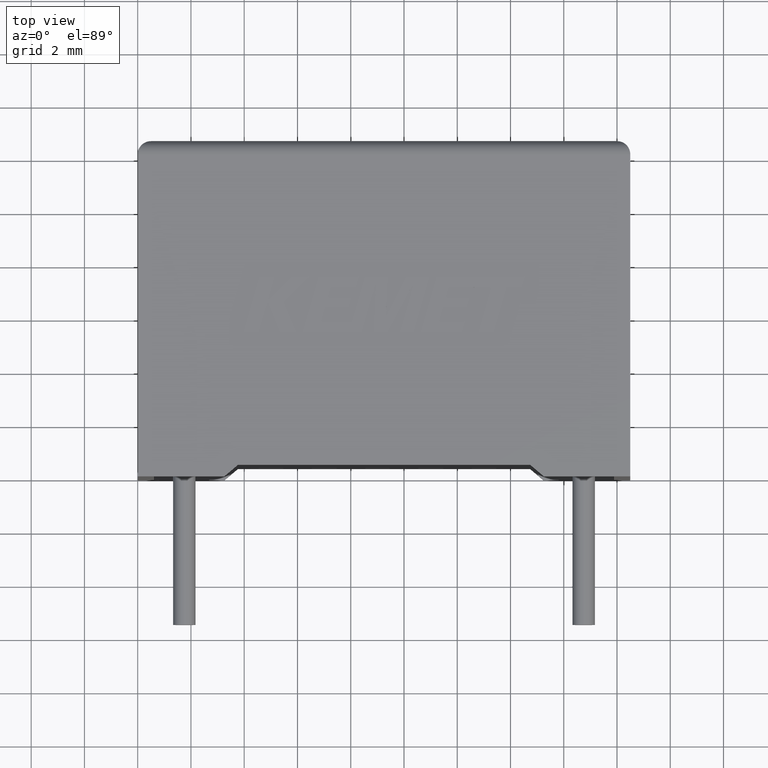
[diagram: clean part render]
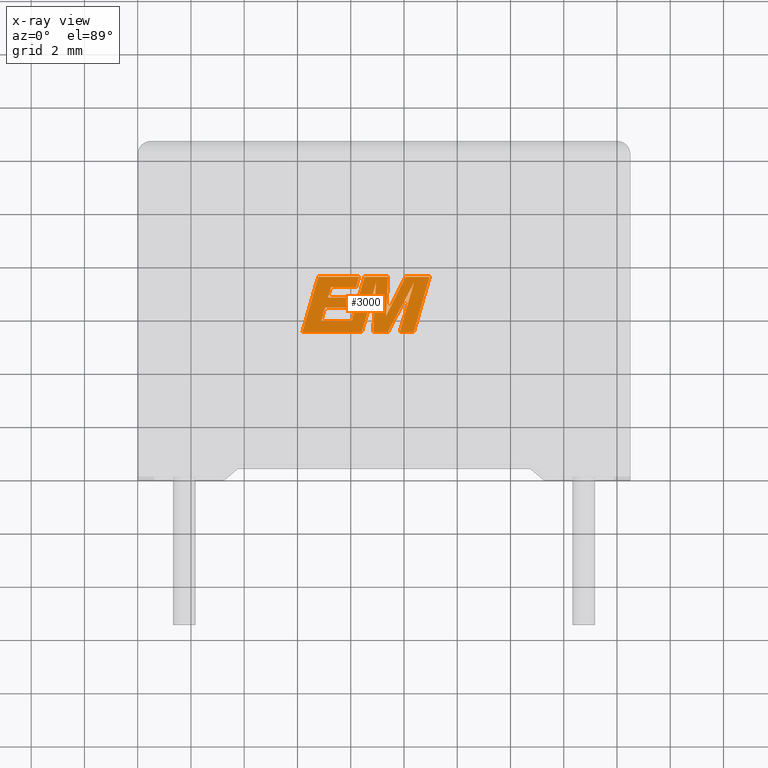
[diagram: x-ray — body ghosted, one internal face saturated and labeled with its STEP entity id]
A machine part, top view, then the same camera in x-ray: the body is ghosted and one INTERNAL B-rep face — a face not visible from any outside direction — is saturated and labeled: STEP entity #3000.
In plain terms, the highlighted planar face has unit normal (0, 0, -1).
Its self-contained STEP definition (entity closure, byte-faithful):
#3 = VECTOR ( 'NONE', #2600, 1000.000000000000000 ) ;
#30 = EDGE_CURVE ( 'NONE', #1759, #2270, #1248, .T. ) ;
#37 = LINE ( 'NONE', #913, #2716 ) ;
#45 = CARTESIAN_POINT ( 'NONE',  ( 8.844489607891244276, 5.421779999999935207, 9.199999999999999289 ) ) ;
#52 = ORIENTED_EDGE ( 'NONE', *, *, #2631, .F. ) ;
#64 = VECTOR ( 'NONE', #1901, 1000.000000000000227 ) ;
#78 = ORIENTED_EDGE ( 'NONE', *, *, #290, .F. ) ;
#82 = ORIENTED_EDGE ( 'NONE', *, *, #1582, .F. ) ;
#104 = CARTESIAN_POINT ( 'NONE',  ( 9.402119625592375129, 7.493935418444622520, 9.199999999999999289 ) ) ;
#105 = EDGE_CURVE ( 'NONE', #1160, #2338, #1770, .T. ) ;
#117 = ORIENTED_EDGE ( 'NONE', *, *, #1500, .F. ) ;
#142 = DIRECTION ( 'NONE',  ( 1.000000000000000000, 0.000000000000000000, 0.000000000000000000 ) ) ;
#153 = EDGE_CURVE ( 'NONE', #2251, #749, #685, .T. ) ;
#184 = LINE ( 'NONE', #890, #2669 ) ;
#186 = DIRECTION ( 'NONE',  ( 0.000000000000000000, 0.000000000000000000, -1.000000000000000000 ) ) ;
#215 = AXIS2_PLACEMENT_3D ( 'NONE', #1570, #186, #389 ) ;
#225 = CARTESIAN_POINT ( 'NONE',  ( 7.035415933177614711, 6.331020239467497923, 9.199999999999999289 ) ) ;
#249 = VERTEX_POINT ( 'NONE', #726 ) ;
#255 = LINE ( 'NONE', #2117, #1226 ) ;
#258 = VECTOR ( 'NONE', #2370, 1000.000000000000000 ) ;
#259 = ORIENTED_EDGE ( 'NONE', *, *, #1656, .F. ) ;
#278 = EDGE_CURVE ( 'NONE', #1948, #767, #2345, .T. ) ;
#289 = DIRECTION ( 'NONE',  ( -1.000000000000000000, 0.000000000000000000, 0.000000000000000000 ) ) ;
#290 = EDGE_CURVE ( 'NONE', #749, #1759, #2814, .T. ) ;
#298 = ORIENTED_EDGE ( 'NONE', *, *, #153, .F. ) ;
#306 = VECTOR ( 'NONE', #2073, 1000.000000000000227 ) ;
#323 = ORIENTED_EDGE ( 'NONE', *, *, #1738, .F. ) ;
#332 = ORIENTED_EDGE ( 'NONE', *, *, #733, .F. ) ;
#339 = VECTOR ( 'NONE', #798, 999.9999999999998863 ) ;
#389 = DIRECTION ( 'NONE',  ( -1.000000000000000000, 0.000000000000000000, 0.000000000000000000 ) ) ;
#393 = LINE ( 'NONE', #3058, #2637 ) ;
#399 = VECTOR ( 'NONE', #943, 1000.000000000000114 ) ;
#425 = VERTEX_POINT ( 'NONE', #617 ) ;
#436 = CARTESIAN_POINT ( 'NONE',  ( 8.418203306722089607, 5.421779999999935207, 9.199999999999999289 ) ) ;
#443 = VECTOR ( 'NONE', #1777, 1000.000000000000000 ) ;
#474 = DIRECTION ( 'NONE',  ( -1.000000000000000000, 0.000000000000000000, 0.000000000000000000 ) ) ;
#522 = DIRECTION ( 'NONE',  ( 0.2746459304916893385, 0.9615454294334481178, 0.000000000000000000 ) ) ;
#616 = ORIENTED_EDGE ( 'NONE', *, *, #1157, .F. ) ;
#617 = CARTESIAN_POINT ( 'NONE',  ( 8.844489607891244276, 5.421779999999935207, 9.199999999999999289 ) ) ;
#623 = CARTESIAN_POINT ( 'NONE',  ( 9.322430453529284122, 6.013560963577187835, 9.199999999999999289 ) ) ;
#625 = CARTESIAN_POINT ( 'NONE',  ( 9.322430453529284122, 6.013560963577187835, 9.199999999999999289 ) ) ;
#638 = FACE_OUTER_BOUND ( 'NONE', #1951, .T. ) ;
#641 = VERTEX_POINT ( 'NONE', #623 ) ;
#680 = ORIENTED_EDGE ( 'NONE', *, *, #2655, .F. ) ;
#685 = LINE ( 'NONE', #1095, #1717 ) ;
#686 = LINE ( 'NONE', #1084, #1273 ) ;
#697 = EDGE_CURVE ( 'NONE', #1247, #1160, #2952, .T. ) ;
#700 = CARTESIAN_POINT ( 'NONE',  ( 8.200952163646057613, 7.099511274375007730, 9.199999999999999289 ) ) ;
#725 = CARTESIAN_POINT ( 'NONE',  ( 8.947895129408749426, 7.266565502838268742, 9.199999999999999289 ) ) ;
#726 = CARTESIAN_POINT ( 'NONE',  ( 10.96548101203375403, 7.493935418444622520, 9.199999999999999289 ) ) ;
#733 = EDGE_CURVE ( 'NONE', #2842, #1523, #840, .T. ) ;
#734 = CARTESIAN_POINT ( 'NONE',  ( 10.36972105026527124, 5.421779999999935207, 9.199999999999999289 ) ) ;
#742 = VERTEX_POINT ( 'NONE', #104 ) ;
#743 = LINE ( 'NONE', #759, #258 ) ;
#744 = LINE ( 'NONE', #45, #1740 ) ;
#749 = VERTEX_POINT ( 'NONE', #2937 ) ;
#759 = CARTESIAN_POINT ( 'NONE',  ( 8.037363267667190669, 5.816008825333079280, 9.199999999999999289 ) ) ;
#767 = VERTEX_POINT ( 'NONE', #2225 ) ;
#771 = CARTESIAN_POINT ( 'NONE',  ( 10.37546720159486036, 7.275449355218821523, 9.199999999999999289 ) ) ;
#778 = DIRECTION ( 'NONE',  ( 0.2793947940878294123, 0.9601763114327593884, 0.000000000000000000 ) ) ;
#782 = CARTESIAN_POINT ( 'NONE',  ( 7.924683256288299837, 6.331020239467497923, 9.199999999999999289 ) ) ;
#792 = CARTESIAN_POINT ( 'NONE',  ( 9.843154327425178707, 5.421779999999935207, 9.199999999999999289 ) ) ;
#795 = VECTOR ( 'NONE', #1675, 1000.000000000000000 ) ;
#798 = DIRECTION ( 'NONE',  ( -0.2760118818968580467, -0.9611542233438684635, 0.000000000000000000 ) ) ;
#811 = CARTESIAN_POINT ( 'NONE',  ( 8.947895129408749426, 7.266565502838268742, 9.199999999999999289 ) ) ;
#840 = LINE ( 'NONE', #1274, #2920 ) ;
#890 = CARTESIAN_POINT ( 'NONE',  ( 8.049365917641033263, 5.421779999999935207, 9.199999999999999289 ) ) ;
#913 = CARTESIAN_POINT ( 'NONE',  ( 10.96548101203375403, 7.493935418444622520, 9.199999999999999289 ) ) ;
#921 = LINE ( 'NONE', #625, #1784 ) ;
#925 = CARTESIAN_POINT ( 'NONE',  ( 6.185855018147796258, 5.421779999999934319, 9.199999999999999289 ) ) ;
#943 = DIRECTION ( 'NONE',  ( 0.2763139702539113007, 0.9610674221107073922, 0.000000000000000000 ) ) ;
#964 = VERTEX_POINT ( 'NONE', #1056 ) ;
#980 = ORIENTED_EDGE ( 'NONE', *, *, #2369, .F. ) ;
#1032 = VERTEX_POINT ( 'NONE', #811 ) ;
#1055 = VERTEX_POINT ( 'NONE', #1485 ) ;
#1056 = CARTESIAN_POINT ( 'NONE',  ( 10.36972105026527124, 5.421779999999935207, 9.199999999999999289 ) ) ;
#1057 = VERTEX_POINT ( 'NONE', #2447 ) ;
#1084 = CARTESIAN_POINT ( 'NONE',  ( 7.035415933177614711, 6.331020239467497923, 9.199999999999999289 ) ) ;
#1087 = EDGE_CURVE ( 'NONE', #1057, #1433, #1314, .T. ) ;
#1095 = CARTESIAN_POINT ( 'NONE',  ( 8.200952163646057613, 7.099511274375007730, 9.199999999999999289 ) ) ;
#1125 = EDGE_CURVE ( 'NONE', #1523, #1055, #686, .T. ) ;
#1157 = EDGE_CURVE ( 'NONE', #2270, #1762, #184, .T. ) ;
#1160 = VERTEX_POINT ( 'NONE', #771 ) ;
#1179 = ORIENTED_EDGE ( 'NONE', *, *, #697, .F. ) ;
#1193 = ORIENTED_EDGE ( 'NONE', *, *, #1087, .F. ) ;
#1226 = VECTOR ( 'NONE', #778, 1000.000000000000227 ) ;
#1247 = VERTEX_POINT ( 'NONE', #2142 ) ;
#1248 = LINE ( 'NONE', #1971, #2111 ) ;
#1273 = VECTOR ( 'NONE', #2038, 1000.000000000000000 ) ;
#1274 = CARTESIAN_POINT ( 'NONE',  ( 6.888674853712253743, 5.816008825333079280, 9.199999999999999289 ) ) ;
#1291 = DIRECTION ( 'NONE',  ( 0.2740217765954066076, 0.9617234872620595842, 0.000000000000000000 ) ) ;
#1314 = LINE ( 'NONE', #3049, #1572 ) ;
#1321 = DIRECTION ( 'NONE',  ( 0.05375259206908576670, 0.9985542843760946141, 0.000000000000000000 ) ) ;
#1374 = VECTOR ( 'NONE', #1428, 1000.000000000000000 ) ;
#1378 = CARTESIAN_POINT ( 'NONE',  ( 8.418203306722089607, 5.421779999999935207, 9.199999999999999289 ) ) ;
#1422 = CARTESIAN_POINT ( 'NONE',  ( 6.782137931756158977, 7.493935418444622520, 9.199999999999999289 ) ) ;
#1428 = DIRECTION ( 'NONE',  ( 1.000000000000000000, 0.000000000000000000, 0.000000000000000000 ) ) ;
#1433 = VERTEX_POINT ( 'NONE', #2325 ) ;
#1457 = ORIENTED_EDGE ( 'NONE', *, *, #30, .F. ) ;
#1485 = CARTESIAN_POINT ( 'NONE',  ( 7.924683256288299837, 6.331020239467497923, 9.199999999999999289 ) ) ;
#1499 = EDGE_CURVE ( 'NONE', #249, #2717, #37, .T. ) ;
#1500 = EDGE_CURVE ( 'NONE', #964, #249, #1658, .T. ) ;
#1503 = CARTESIAN_POINT ( 'NONE',  ( 6.888674853712253743, 5.816008825333079280, 9.199999999999999289 ) ) ;
#1523 = VERTEX_POINT ( 'NONE', #225 ) ;
#1525 = EDGE_CURVE ( 'NONE', #1032, #425, #2125, .T. ) ;
#1570 = CARTESIAN_POINT ( 'NONE',  ( -0.2249145928931925442, -1.285113458202319814, 9.199999999999999289 ) ) ;
#1572 = VECTOR ( 'NONE', #2262, 1000.000000000000000 ) ;
#1582 = EDGE_CURVE ( 'NONE', #1762, #1032, #2791, .T. ) ;
#1656 = EDGE_CURVE ( 'NONE', #2757, #2251, #3001, .T. ) ;
#1658 = LINE ( 'NONE', #734, #399 ) ;
#1668 = DIRECTION ( 'NONE',  ( 1.000000000000000000, 0.000000000000000000, 0.000000000000000000 ) ) ;
#1675 = DIRECTION ( 'NONE',  ( -0.2762517575166417161, -0.9610853065513833560, 0.000000000000000000 ) ) ;
#1717 = VECTOR ( 'NONE', #1786, 999.9999999999998863 ) ;
#1738 = EDGE_CURVE ( 'NONE', #1433, #2757, #255, .T. ) ;
#1740 = VECTOR ( 'NONE', #1668, 1000.000000000000000 ) ;
#1745 = EDGE_CURVE ( 'NONE', #767, #2842, #743, .T. ) ;
#1759 = VERTEX_POINT ( 'NONE', #1422 ) ;
#1762 = VERTEX_POINT ( 'NONE', #1378 ) ;
#1770 = LINE ( 'NONE', #2718, #339 ) ;
#1777 = DIRECTION ( 'NONE',  ( 0.4668459304955080436, 0.8843386665637680277, 0.000000000000000000 ) ) ;
#1784 = VECTOR ( 'NONE', #1321, 1000.000000000000000 ) ;
#1786 = DIRECTION ( 'NONE',  ( 0.2732148821746286926, 0.9619530280415483636, 0.000000000000000000 ) ) ;
#1824 = DIRECTION ( 'NONE',  ( -0.2765379750249963298, -0.9610029908221277006, 0.000000000000000000 ) ) ;
#1841 = DIRECTION ( 'NONE',  ( 1.000000000000000000, 0.000000000000000000, 0.000000000000000000 ) ) ;
#1871 = ORIENTED_EDGE ( 'NONE', *, *, #1125, .F. ) ;
#1876 = DIRECTION ( 'NONE',  ( -0.4443210308329518243, -0.8958676361826801715, 0.000000000000000000 ) ) ;
#1901 = DIRECTION ( 'NONE',  ( -0.05596501978069369498, -0.9984327301130239141, 0.000000000000000000 ) ) ;
#1948 = VERTEX_POINT ( 'NONE', #2738 ) ;
#1951 = EDGE_LOOP ( 'NONE', ( #2809, #117, #2527, #2457, #1179, #2284, #2306, #82, #616, #1457, #78, #298, #259, #323, #1193, #980, #1871, #332, #2141, #2138, #2704, #680, #52 ) ) ;
#1971 = CARTESIAN_POINT ( 'NONE',  ( 6.782137931756158977, 7.493935418444622520, 9.199999999999999289 ) ) ;
#2038 = DIRECTION ( 'NONE',  ( 1.000000000000000000, 0.000000000000000000, 0.000000000000000000 ) ) ;
#2042 = CARTESIAN_POINT ( 'NONE',  ( 9.396907711110600303, 5.421779999999935207, 9.199999999999999289 ) ) ;
#2073 = DIRECTION ( 'NONE',  ( 0.2759782365590697228, 0.9611638845408965182, 0.000000000000000000 ) ) ;
#2111 = VECTOR ( 'NONE', #1824, 1000.000000000000114 ) ;
#2117 = CARTESIAN_POINT ( 'NONE',  ( 7.144706219326467433, 6.714090694176951146, 9.199999999999999289 ) ) ;
#2125 = LINE ( 'NONE', #725, #64 ) ;
#2138 = ORIENTED_EDGE ( 'NONE', *, *, #278, .F. ) ;
#2141 = ORIENTED_EDGE ( 'NONE', *, *, #1745, .F. ) ;
#2142 = CARTESIAN_POINT ( 'NONE',  ( 9.396907711110600303, 5.421779999999935207, 9.199999999999999289 ) ) ;
#2149 = CARTESIAN_POINT ( 'NONE',  ( 7.256856979931010088, 7.099511274375007730, 9.199999999999999289 ) ) ;
#2178 = VECTOR ( 'NONE', #289, 1000.000000000000000 ) ;
#2225 = CARTESIAN_POINT ( 'NONE',  ( 8.037363267667190669, 5.816008825333079280, 9.199999999999999289 ) ) ;
#2251 = VERTEX_POINT ( 'NONE', #700 ) ;
#2262 = DIRECTION ( 'NONE',  ( -1.000000000000000000, 0.000000000000000000, 0.000000000000000000 ) ) ;
#2270 = VERTEX_POINT ( 'NONE', #925 ) ;
#2284 = ORIENTED_EDGE ( 'NONE', *, *, #2702, .F. ) ;
#2303 = EDGE_CURVE ( 'NONE', #2338, #964, #2904, .T. ) ;
#2306 = ORIENTED_EDGE ( 'NONE', *, *, #1525, .F. ) ;
#2325 = CARTESIAN_POINT ( 'NONE',  ( 7.144706219326467433, 6.714090694176951146, 9.199999999999999289 ) ) ;
#2338 = VERTEX_POINT ( 'NONE', #792 ) ;
#2345 = LINE ( 'NONE', #2876, #795 ) ;
#2369 = EDGE_CURVE ( 'NONE', #1055, #1057, #2643, .T. ) ;
#2370 = DIRECTION ( 'NONE',  ( -1.000000000000000000, 0.000000000000000000, 0.000000000000000000 ) ) ;
#2382 = VECTOR ( 'NONE', #522, 1000.000000000000000 ) ;
#2389 = EDGE_CURVE ( 'NONE', #742, #1948, #2406, .T. ) ;
#2396 = CARTESIAN_POINT ( 'NONE',  ( 8.312976912160237930, 7.493935418444622520, 9.199999999999999289 ) ) ;
#2406 = LINE ( 'NONE', #2889, #2178 ) ;
#2447 = CARTESIAN_POINT ( 'NONE',  ( 8.034099554527626807, 6.714090694176951146, 9.199999999999999289 ) ) ;
#2457 = ORIENTED_EDGE ( 'NONE', *, *, #105, .F. ) ;
#2509 = PLANE ( 'NONE',  #215 ) ;
#2527 = ORIENTED_EDGE ( 'NONE', *, *, #2303, .F. ) ;
#2578 = VECTOR ( 'NONE', #142, 1000.000000000000000 ) ;
#2600 = DIRECTION ( 'NONE',  ( -1.000000000000000000, 0.000000000000000000, 0.000000000000000000 ) ) ;
#2631 = EDGE_CURVE ( 'NONE', #2717, #641, #393, .T. ) ;
#2637 = VECTOR ( 'NONE', #1876, 1000.000000000000227 ) ;
#2643 = LINE ( 'NONE', #782, #2382 ) ;
#2655 = EDGE_CURVE ( 'NONE', #641, #742, #921, .T. ) ;
#2666 = CARTESIAN_POINT ( 'NONE',  ( 9.843154327425178707, 5.421779999999935207, 9.199999999999999289 ) ) ;
#2669 = VECTOR ( 'NONE', #1841, 1000.000000000000000 ) ;
#2702 = EDGE_CURVE ( 'NONE', #425, #1247, #744, .T. ) ;
#2704 = ORIENTED_EDGE ( 'NONE', *, *, #2389, .F. ) ;
#2716 = VECTOR ( 'NONE', #474, 1000.000000000000000 ) ;
#2717 = VERTEX_POINT ( 'NONE', #2826 ) ;
#2718 = CARTESIAN_POINT ( 'NONE',  ( 10.37546720159486036, 7.275449355218821523, 9.199999999999999289 ) ) ;
#2738 = CARTESIAN_POINT ( 'NONE',  ( 8.519661943103439938, 7.493935418444622520, 9.199999999999999289 ) ) ;
#2757 = VERTEX_POINT ( 'NONE', #2149 ) ;
#2791 = LINE ( 'NONE', #436, #306 ) ;
#2809 = ORIENTED_EDGE ( 'NONE', *, *, #1499, .F. ) ;
#2814 = LINE ( 'NONE', #2396, #3 ) ;
#2826 = CARTESIAN_POINT ( 'NONE',  ( 10.05664773880616991, 7.493935418444622520, 9.199999999999999289 ) ) ;
#2842 = VERTEX_POINT ( 'NONE', #1503 ) ;
#2876 = CARTESIAN_POINT ( 'NONE',  ( 8.519661943103439938, 7.493935418444622520, 9.199999999999999289 ) ) ;
#2889 = CARTESIAN_POINT ( 'NONE',  ( 9.402119625592375129, 7.493935418444622520, 9.199999999999999289 ) ) ;
#2904 = LINE ( 'NONE', #2666, #1374 ) ;
#2920 = VECTOR ( 'NONE', #1291, 1000.000000000000114 ) ;
#2937 = CARTESIAN_POINT ( 'NONE',  ( 8.312976912160237930, 7.493935418444622520, 9.199999999999999289 ) ) ;
#2952 = LINE ( 'NONE', #2042, #443 ) ;
#3000 = ADVANCED_FACE ( 'NONE', ( #638 ), #2509, .T. ) ;
#3001 = LINE ( 'NONE', #3011, #2578 ) ;
#3011 = CARTESIAN_POINT ( 'NONE',  ( 7.256856979931010088, 7.099511274375007730, 9.199999999999999289 ) ) ;
#3049 = CARTESIAN_POINT ( 'NONE',  ( 8.034099554527626807, 6.714090694176951146, 9.199999999999999289 ) ) ;
#3058 = CARTESIAN_POINT ( 'NONE',  ( 10.05664773880616991, 7.493935418444622520, 9.199999999999999289 ) ) ;